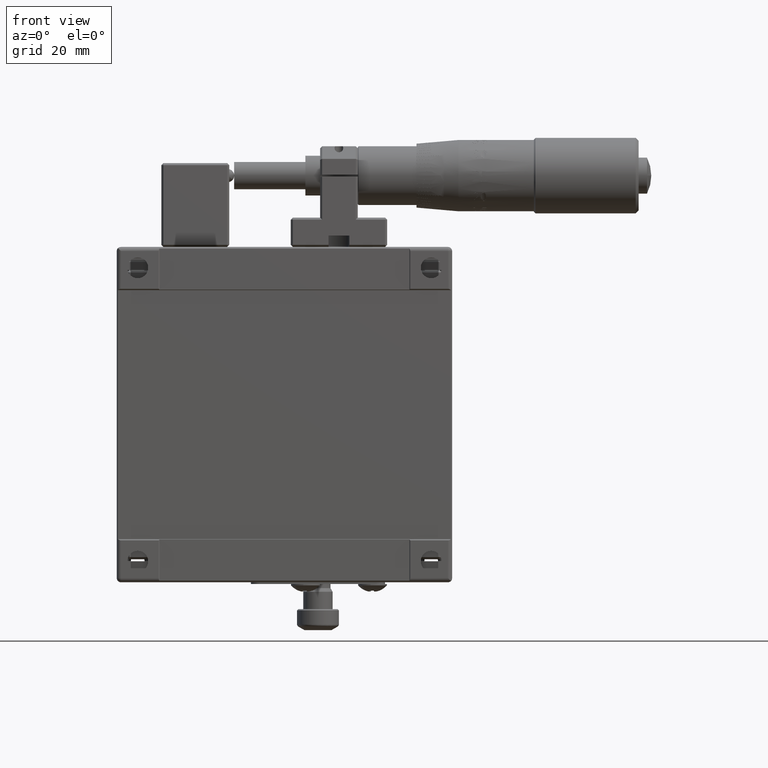
[diagram: clean part render]
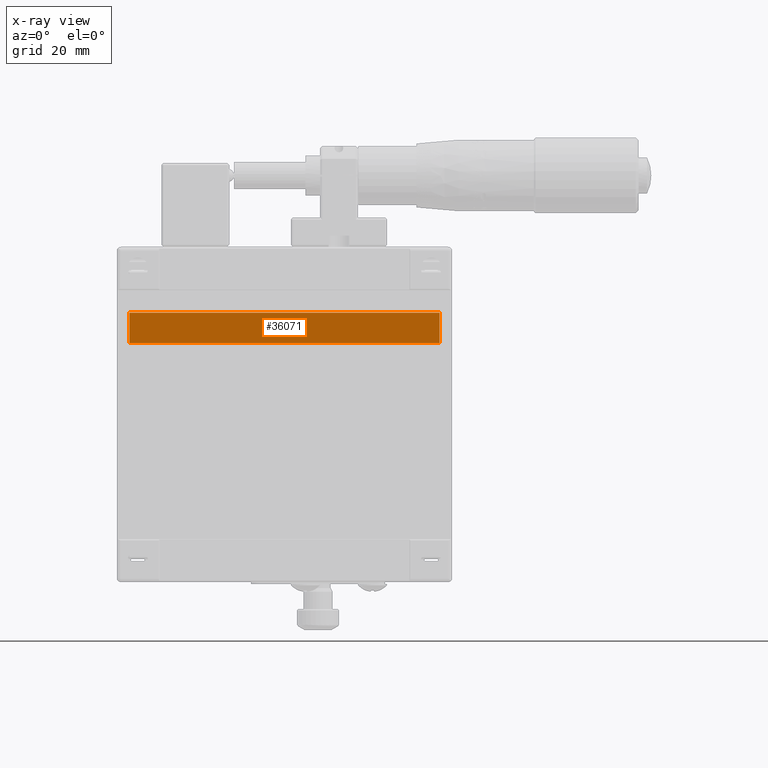
[diagram: x-ray — body ghosted, one internal face saturated and labeled with its STEP entity id]
A machine part, front view, then the same camera in x-ray: the body is ghosted and one INTERNAL B-rep face — a face not visible from any outside direction — is saturated and labeled: STEP entity #36071.
In plain terms, the highlighted planar face has unit normal (-0, -1, -0).
Its self-contained STEP definition (entity closure, byte-faithful):
#2048 = VERTEX_POINT ( 'NONE', #50311 ) ;
#4094 = CARTESIAN_POINT ( 'NONE',  ( 32.30988274706895425, 7.239949748743690350, 24.80000000000000071 ) ) ;
#4841 = VERTEX_POINT ( 'NONE', #19138 ) ;
#5211 = LINE ( 'NONE', #37084, #65955 ) ;
#5678 = DIRECTION ( 'NONE',  ( 7.441963711940660207E-16, -2.812050496971604566E-17, 1.000000000000000000 ) ) ;
#8366 = VECTOR ( 'NONE', #5678, 1000.000000000000000 ) ;
#13238 = ORIENTED_EDGE ( 'NONE', *, *, #36224, .T. ) ;
#13918 = LINE ( 'NONE', #4094, #51578 ) ;
#16170 = CARTESIAN_POINT ( 'NONE',  ( -41.69011725293159998, 7.239949748743690350, 24.80000000000000071 ) ) ;
#19138 = CARTESIAN_POINT ( 'NONE',  ( 32.30988274706895425, 7.239949748743730318, 17.00000000000000000 ) ) ;
#19206 = AXIS2_PLACEMENT_3D ( 'NONE', #34852, #59904, #19233 ) ;
#19233 = DIRECTION ( 'NONE',  ( -1.000000000000000000, 4.728296231391710011E-16, 0.000000000000000000 ) ) ;
#19974 = ORIENTED_EDGE ( 'NONE', *, *, #63775, .T. ) ;
#25870 = EDGE_CURVE ( 'NONE', #65475, #4841, #13918, .T. ) ;
#26004 = LINE ( 'NONE', #16170, #8366 ) ;
#33839 = FACE_OUTER_BOUND ( 'NONE', #38487, .T. ) ;
#34852 = CARTESIAN_POINT ( 'NONE',  ( 32.80988274706900398, 7.239949748743690350, 24.80000000000000071 ) ) ;
#36071 = ADVANCED_FACE ( 'NONE', ( #33839 ), #39247, .F. ) ;
#36224 = EDGE_CURVE ( 'NONE', #2048, #49758, #26004, .T. ) ;
#37084 = CARTESIAN_POINT ( 'NONE',  ( 32.80988274706900398, 7.239949748743730318, 24.29999999999999716 ) ) ;
#38059 = DIRECTION ( 'NONE',  ( -1.000000000000000000, -4.728296231391669582E-16, -7.441963711940619778E-16 ) ) ;
#38446 = EDGE_CURVE ( 'NONE', #49758, #65475, #5211, .T. ) ;
#38487 = EDGE_LOOP ( 'NONE', ( #63408, #19974, #13238, #66377 ) ) ;
#39247 = PLANE ( 'NONE',  #19206 ) ;
#49758 = VERTEX_POINT ( 'NONE', #52077 ) ;
#50311 = CARTESIAN_POINT ( 'NONE',  ( -41.69011725293159998, 7.239949748743730318, 17.00000000000000000 ) ) ;
#50956 = VECTOR ( 'NONE', #38059, 1000.000000000000000 ) ;
#51578 = VECTOR ( 'NONE', #55612, 1000.000000000000000 ) ;
#52077 = CARTESIAN_POINT ( 'NONE',  ( -41.69011725293159998, 7.239949748743730318, 24.29999999999999716 ) ) ;
#52335 = LINE ( 'NONE', #58715, #50956 ) ;
#55612 = DIRECTION ( 'NONE',  ( -7.441963711940660207E-16, 2.812050496971604566E-17, -1.000000000000000000 ) ) ;
#57739 = DIRECTION ( 'NONE',  ( 1.000000000000000000, 4.728296231391669582E-16, 7.441963711940619778E-16 ) ) ;
#58715 = CARTESIAN_POINT ( 'NONE',  ( 32.80988274706900398, 7.239949748743730318, 17.00000000000000000 ) ) ;
#59904 = DIRECTION ( 'NONE',  ( -4.728296231391710011E-16, -1.000000000000000000, -2.812050496971564506E-17 ) ) ;
#60403 = CARTESIAN_POINT ( 'NONE',  ( 32.30988274706895425, 7.239949748743730318, 24.29999999999999716 ) ) ;
#63408 = ORIENTED_EDGE ( 'NONE', *, *, #25870, .T. ) ;
#63775 = EDGE_CURVE ( 'NONE', #4841, #2048, #52335, .T. ) ;
#65475 = VERTEX_POINT ( 'NONE', #60403 ) ;
#65955 = VECTOR ( 'NONE', #57739, 1000.000000000000000 ) ;
#66377 = ORIENTED_EDGE ( 'NONE', *, *, #38446, .T. ) ;